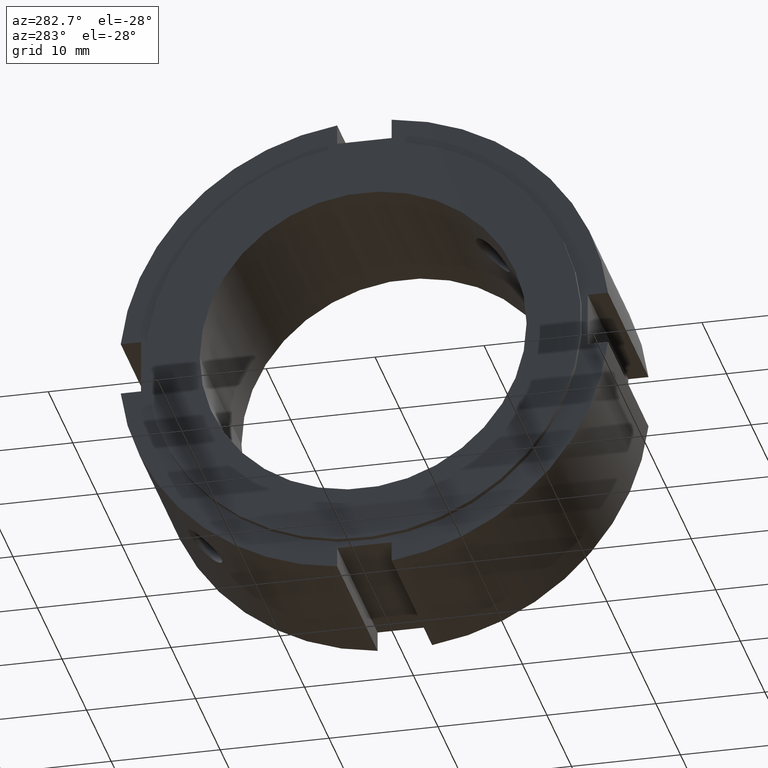
[diagram: clean part render]
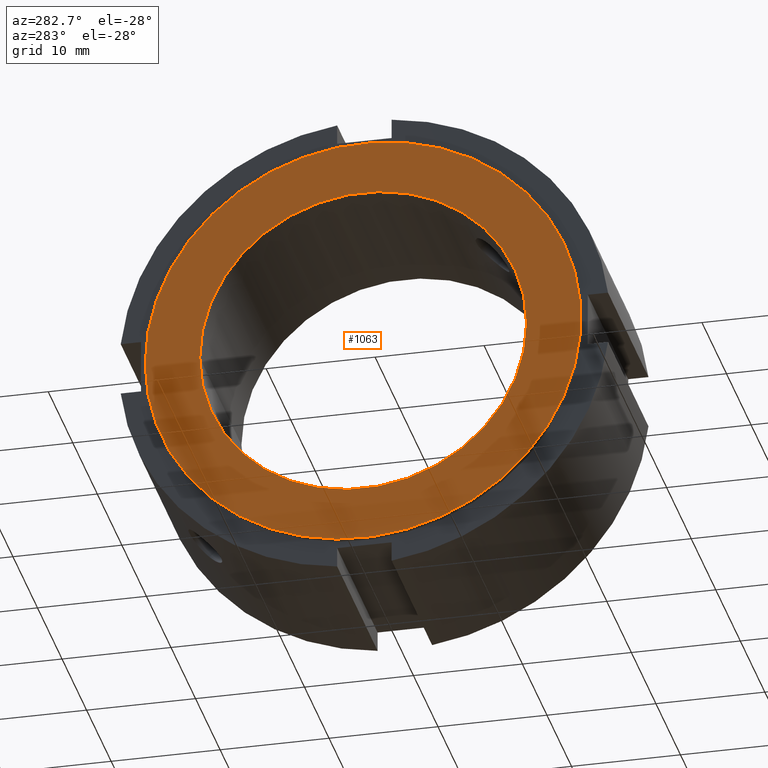
[diagram: same view with one face highlighted and labeled with its STEP entity id]
A machine part, auxiliary view. The second image highlights one B-rep face of the part: STEP entity #1063.
In plain terms, the highlighted planar face has unit normal (-1, 0, 0).
Its self-contained STEP definition (entity closure, byte-faithful):
#1023=CARTESIAN_POINT('',(-0.499999999999996,15.0,0.0));
#1024=VERTEX_POINT('',#1023);
#1025=CARTESIAN_POINT('',(-0.499999999999996,0.0,0.0));
#1026=DIRECTION('',(1.0,0.0,0.0));
#1027=DIRECTION('',(0.0,1.0,0.0));
#1028=AXIS2_PLACEMENT_3D('',#1025,#1026,#1027);
#1029=CIRCLE('',#1028,15.0);
#1030=EDGE_CURVE('',#1024,#1024,#1029,.T.);
#1044=CARTESIAN_POINT('',(-0.499999999999997,17.500000000000000,0.0));
#1045=DIRECTION('',(-1.0,0.0,0.0));
#1046=DIRECTION('',(0.0,0.0,1.0));
#1047=AXIS2_PLACEMENT_3D('',#1044,#1045,#1046);
#1048=PLANE('',#1047);
#1049=CARTESIAN_POINT('',(-0.499999999999997,20.0,0.0));
#1050=VERTEX_POINT('',#1049);
#1051=CARTESIAN_POINT('',(-0.499999999999997,0.0,0.0));
#1052=DIRECTION('',(1.0,0.0,0.0));
#1053=DIRECTION('',(0.0,1.0,0.0));
#1054=AXIS2_PLACEMENT_3D('',#1051,#1052,#1053);
#1055=CIRCLE('',#1054,20.0);
#1056=EDGE_CURVE('',#1050,#1050,#1055,.T.);
#1057=ORIENTED_EDGE('',*,*,#1056,.F.);
#1058=EDGE_LOOP('',(#1057));
#1059=FACE_OUTER_BOUND('',#1058,.T.);
#1060=ORIENTED_EDGE('',*,*,#1030,.T.);
#1061=EDGE_LOOP('',(#1060));
#1062=FACE_BOUND('',#1061,.T.);
#1063=ADVANCED_FACE('',(#1059,#1062),#1048,.T.);